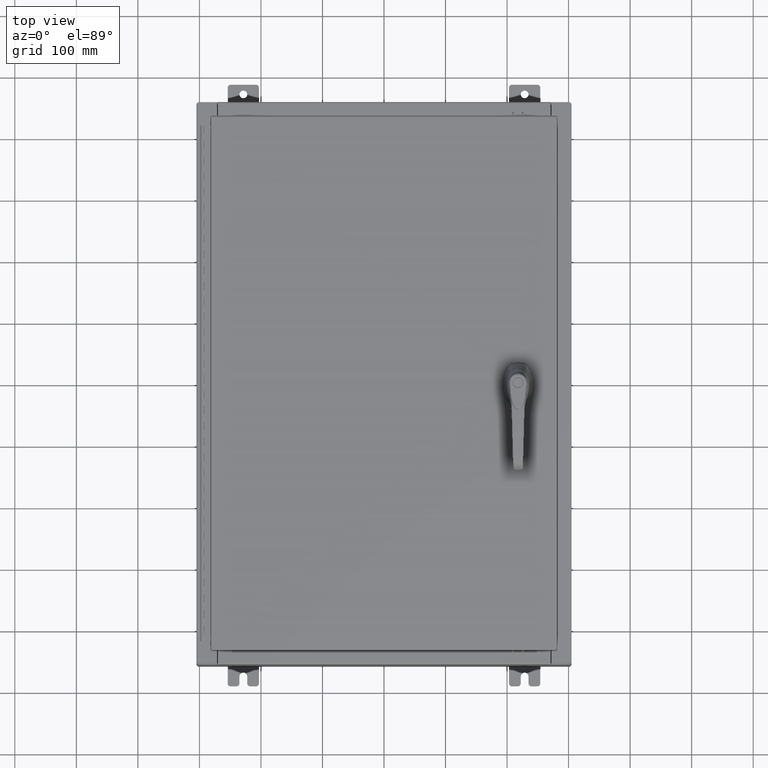
[diagram: clean part render]
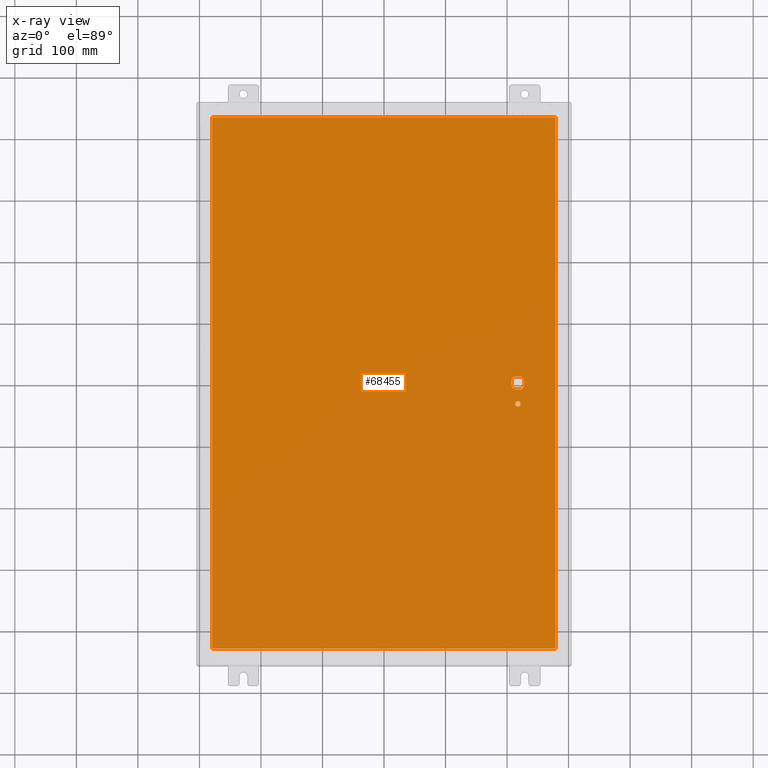
[diagram: x-ray — body ghosted, one internal face saturated and labeled with its STEP entity id]
A machine part, top view, then the same camera in x-ray: the body is ghosted and one INTERNAL B-rep face — a face not visible from any outside direction — is saturated and labeled: STEP entity #68455.
In plain terms, the highlighted planar face has unit normal (0, 0, -1).
Its self-contained STEP definition (entity closure, byte-faithful):
#1070 = VERTEX_POINT ( 'NONE', #113569 ) ;
#3262 = CARTESIAN_POINT ( 'NONE',  ( 10.99029999999999800, 17.00630000000000700, -0.07470000000000019700 ) ) ;
#3446 = CARTESIAN_POINT ( 'NONE',  ( 0.0000000000000000000, -0.4029999999999252000, -0.07470000000000003000 ) ) ;
#3655 = CARTESIAN_POINT ( 'NONE',  ( 0.0000000000000000000, 0.4029999999999252000, -0.07470000000000003000 ) ) ;
#4404 = EDGE_CURVE ( 'NONE', #78769, #97299, #23816, .T. ) ;
#6912 = DIRECTION ( 'NONE',  ( -1.000000000000000000, 0.0000000000000000000, 0.0000000000000000000 ) ) ;
#9930 = CARTESIAN_POINT ( 'NONE',  ( 8.377772629243686700, 0.4029999999999252000, -0.07470000000000003000 ) ) ;
#10451 = LINE ( 'NONE', #49284, #35782 ) ;
#12286 = CARTESIAN_POINT ( 'NONE',  ( 8.980999999999921700, 0.2002273707563080300, -0.07470000000000003000 ) ) ;
#14050 = CARTESIAN_POINT ( 'NONE',  ( 8.980999999999921700, 2.450686610769031800E-014, -0.07470000000000003000 ) ) ;
#14577 = FACE_BOUND ( 'NONE', #26274, .T. ) ;
#15269 = DIRECTION ( 'NONE',  ( 1.000000000000000000, -0.0000000000000000000, -0.0000000000000000000 ) ) ;
#15894 = VECTOR ( 'NONE', #15269, 39.37007874015748100 ) ;
#16020 = EDGE_CURVE ( 'NONE', #73569, #1070, #109365, .T. ) ;
#17822 = ORIENTED_EDGE ( 'NONE', *, *, #25262, .T. ) ;
#18682 = VERTEX_POINT ( 'NONE', #97175 ) ;
#18801 = CARTESIAN_POINT ( 'NONE',  ( 10.99029999999999600, -17.00629999999999200, -0.07470000000000019700 ) ) ;
#21846 = LINE ( 'NONE', #110418, #15894 ) ;
#22092 = DIRECTION ( 'NONE',  ( -0.0000000000000000000, -0.0000000000000000000, 1.000000000000000000 ) ) ;
#22480 = DIRECTION ( 'NONE',  ( -1.000000000000000000, -0.0000000000000000000, -0.0000000000000000000 ) ) ;
#22574 = AXIS2_PLACEMENT_3D ( 'NONE', #43477, #35152, #101652 ) ;
#23606 = CIRCLE ( 'NONE', #51478, 0.4499999999999156900 ) ;
#23816 = LINE ( 'NONE', #14050, #46109 ) ;
#25262 = EDGE_CURVE ( 'NONE', #69140, #95932, #55488, .T. ) ;
#25585 = VERTEX_POINT ( 'NONE', #79949 ) ;
#26274 = EDGE_LOOP ( 'NONE', ( #41808, #66466, #101268, #117539, #17822, #44963, #90608, #122999 ) ) ;
#29075 = CIRCLE ( 'NONE', #112150, 0.4499999999999156900 ) ;
#29702 = CARTESIAN_POINT ( 'NONE',  ( 8.778227370756305000, 0.4029999999999250300, -0.07470000000000003000 ) ) ;
#30662 = EDGE_CURVE ( 'NONE', #57520, #73569, #108465, .T. ) ;
#31589 = EDGE_CURVE ( 'NONE', #78769, #113852, #23606, .T. ) ;
#32776 = DIRECTION ( 'NONE',  ( -0.0000000000000000000, -0.0000000000000000000, 1.000000000000000000 ) ) ;
#32853 = DIRECTION ( 'NONE',  ( -0.0000000000000000000, -0.0000000000000000000, 1.000000000000000000 ) ) ;
#35152 = DIRECTION ( 'NONE',  ( 0.0000000000000000000, 0.0000000000000000000, -1.000000000000000000 ) ) ;
#35674 = VERTEX_POINT ( 'NONE', #88332 ) ;
#35782 = VECTOR ( 'NONE', #39768, 39.37007874015748100 ) ;
#38042 = CARTESIAN_POINT ( 'NONE',  ( 8.577999999999995900, 0.0000000000000000000, -0.07470000000000003000 ) ) ;
#39768 = DIRECTION ( 'NONE',  ( 0.0000000000000000000, -1.000000000000000000, 0.0000000000000000000 ) ) ;
#40408 = DIRECTION ( 'NONE',  ( -0.0000000000000000000, -0.0000000000000000000, 1.000000000000000000 ) ) ;
#40624 = EDGE_LOOP ( 'NONE', ( #88833, #77895, #58285, #94299 ) ) ;
#41808 = ORIENTED_EDGE ( 'NONE', *, *, #89990, .T. ) ;
#43477 = CARTESIAN_POINT ( 'NONE',  ( 0.0000000000000000000, 0.0000000000000000000, -0.07470000000000000300 ) ) ;
#44963 = ORIENTED_EDGE ( 'NONE', *, *, #95274, .T. ) ;
#46066 = CARTESIAN_POINT ( 'NONE',  ( -10.99030000000000500, 17.00630000000000700, -0.07470000000000347200 ) ) ;
#46109 = VECTOR ( 'NONE', #60135, 39.37007874015748100 ) ;
#46400 = AXIS2_PLACEMENT_3D ( 'NONE', #97367, #40408, #106836 ) ;
#46610 = EDGE_LOOP ( 'NONE', ( #72561, #48138 ) ) ;
#47564 = DIRECTION ( 'NONE',  ( -1.000000000000000000, 0.0000000000000000000, 0.0000000000000000000 ) ) ;
#48138 = ORIENTED_EDGE ( 'NONE', *, *, #118010, .T. ) ;
#49284 = CARTESIAN_POINT ( 'NONE',  ( 8.175000000000070000, 0.0000000000000000000, -0.07470000000000003000 ) ) ;
#49644 = CIRCLE ( 'NONE', #112296, 0.1715000000000011500 ) ;
#51478 = AXIS2_PLACEMENT_3D ( 'NONE', #89760, #32853, #99374 ) ;
#54357 = EDGE_CURVE ( 'NONE', #56743, #99398, #76014, .T. ) ;
#54610 = LINE ( 'NONE', #3446, #115526 ) ;
#54948 = VECTOR ( 'NONE', #22480, 39.37007874015748100 ) ;
#55488 = CIRCLE ( 'NONE', #119496, 0.4499999999999156900 ) ;
#56743 = VERTEX_POINT ( 'NONE', #76300 ) ;
#57520 = VERTEX_POINT ( 'NONE', #106802 ) ;
#58285 = ORIENTED_EDGE ( 'NONE', *, *, #16020, .F. ) ;
#60135 = DIRECTION ( 'NONE',  ( 2.728745808672812900E-015, -1.000000000000000000, 0.0000000000000000000 ) ) ;
#63847 = DIRECTION ( 'NONE',  ( -0.0000000000000000000, -0.0000000000000000000, 1.000000000000000000 ) ) ;
#66466 = ORIENTED_EDGE ( 'NONE', *, *, #4404, .F. ) ;
#67722 = EDGE_CURVE ( 'NONE', #113852, #69140, #106804, .T. ) ;
#68455 = ADVANCED_FACE ( 'NONE', ( #115684, #118664, #14577 ), #92081, .T. ) ;
#69140 = VERTEX_POINT ( 'NONE', #9930 ) ;
#69632 = EDGE_CURVE ( 'NONE', #1070, #25585, #21846, .T. ) ;
#70026 = CARTESIAN_POINT ( 'NONE',  ( -10.99030000000000100, 17.00630000000000700, -0.07470000000000000300 ) ) ;
#70704 = LINE ( 'NONE', #18801, #118285 ) ;
#72561 = ORIENTED_EDGE ( 'NONE', *, *, #79513, .T. ) ;
#73569 = VERTEX_POINT ( 'NONE', #70026 ) ;
#75720 = DIRECTION ( 'NONE',  ( 0.0000000000000000000, 1.000000000000000000, 0.0000000000000000000 ) ) ;
#75833 = CARTESIAN_POINT ( 'NONE',  ( 8.980999999999921700, -0.2002273707563075900, -0.07470000000000003000 ) ) ;
#76014 = CIRCLE ( 'NONE', #46400, 0.4499999999999156900 ) ;
#76300 = CARTESIAN_POINT ( 'NONE',  ( 8.175000000000070000, -0.2002273707563079800, -0.07470000000000003000 ) ) ;
#77895 = ORIENTED_EDGE ( 'NONE', *, *, #69632, .F. ) ;
#78769 = VERTEX_POINT ( 'NONE', #12286 ) ;
#79016 = CARTESIAN_POINT ( 'NONE',  ( 8.577999999999995900, 0.0000000000000000000, -0.07470000000000003000 ) ) ;
#79513 = EDGE_CURVE ( 'NONE', #104827, #35674, #49644, .T. ) ;
#79949 = CARTESIAN_POINT ( 'NONE',  ( 10.99029999999999600, -17.00629999999999600, -0.07470000000000000300 ) ) ;
#88332 = CARTESIAN_POINT ( 'NONE',  ( 8.406499999999994100, -1.338000000000000100, -0.07470000000000003000 ) ) ;
#88587 = DIRECTION ( 'NONE',  ( -1.000000000000000000, 1.776356839400251300E-015, 0.0000000000000000000 ) ) ;
#88833 = ORIENTED_EDGE ( 'NONE', *, *, #122625, .F. ) ;
#89346 = DIRECTION ( 'NONE',  ( -1.000000000000000000, 0.0000000000000000000, 0.0000000000000000000 ) ) ;
#89683 = CARTESIAN_POINT ( 'NONE',  ( 8.577999999999995900, -1.338000000000000100, -0.07470000000000003000 ) ) ;
#89760 = CARTESIAN_POINT ( 'NONE',  ( 8.577999999999995900, 0.0000000000000000000, -0.07470000000000003000 ) ) ;
#89990 = EDGE_CURVE ( 'NONE', #18682, #97299, #29075, .T. ) ;
#90608 = ORIENTED_EDGE ( 'NONE', *, *, #54357, .T. ) ;
#92081 = PLANE ( 'NONE',  #22574 ) ;
#93602 = CARTESIAN_POINT ( 'NONE',  ( 8.175000000000070000, 0.2002273707563080300, -0.07470000000000003000 ) ) ;
#94299 = ORIENTED_EDGE ( 'NONE', *, *, #30662, .F. ) ;
#95274 = EDGE_CURVE ( 'NONE', #95932, #56743, #10451, .T. ) ;
#95932 = VERTEX_POINT ( 'NONE', #93602 ) ;
#97175 = CARTESIAN_POINT ( 'NONE',  ( 8.778227370756305000, -0.4029999999999252000, -0.07470000000000003000 ) ) ;
#97299 = VERTEX_POINT ( 'NONE', #75833 ) ;
#97367 = CARTESIAN_POINT ( 'NONE',  ( 8.577999999999995900, 0.0000000000000000000, -0.07470000000000003000 ) ) ;
#99293 = DIRECTION ( 'NONE',  ( -1.000000000000000000, 0.0000000000000000000, 0.0000000000000000000 ) ) ;
#99374 = DIRECTION ( 'NONE',  ( -1.000000000000000000, 0.0000000000000000000, 0.0000000000000000000 ) ) ;
#99398 = VERTEX_POINT ( 'NONE', #105158 ) ;
#101268 = ORIENTED_EDGE ( 'NONE', *, *, #31589, .T. ) ;
#101652 = DIRECTION ( 'NONE',  ( -1.000000000000000000, 0.0000000000000000000, -0.0000000000000000000 ) ) ;
#101740 = CIRCLE ( 'NONE', #103289, 0.1715000000000011500 ) ;
#103289 = AXIS2_PLACEMENT_3D ( 'NONE', #89683, #32776, #99293 ) ;
#103892 = VECTOR ( 'NONE', #89346, 39.37007874015748100 ) ;
#104505 = DIRECTION ( 'NONE',  ( -0.0000000000000000000, -0.0000000000000000000, 1.000000000000000000 ) ) ;
#104827 = VERTEX_POINT ( 'NONE', #119483 ) ;
#105158 = CARTESIAN_POINT ( 'NONE',  ( 8.377772629243686700, -0.4029999999999250300, -0.07470000000000003000 ) ) ;
#106331 = VECTOR ( 'NONE', #122096, 39.37007874015748100 ) ;
#106802 = CARTESIAN_POINT ( 'NONE',  ( 10.99029999999999600, 17.00630000000000700, -0.07470000000000000300 ) ) ;
#106804 = LINE ( 'NONE', #3655, #103892 ) ;
#106836 = DIRECTION ( 'NONE',  ( -1.000000000000000000, 8.881784197001256300E-016, 0.0000000000000000000 ) ) ;
#108465 = LINE ( 'NONE', #3262, #54948 ) ;
#108644 = DIRECTION ( 'NONE',  ( 1.000000000000000000, 0.0000000000000000000, 0.0000000000000000000 ) ) ;
#109365 = LINE ( 'NONE', #46066, #106331 ) ;
#110418 = CARTESIAN_POINT ( 'NONE',  ( -10.99030000000000000, -17.00629999999999600, -0.07470000000000019700 ) ) ;
#112150 = AXIS2_PLACEMENT_3D ( 'NONE', #79016, #22092, #88587 ) ;
#112296 = AXIS2_PLACEMENT_3D ( 'NONE', #120799, #63847, #6912 ) ;
#113569 = CARTESIAN_POINT ( 'NONE',  ( -10.99030000000000000, -17.00629999999999600, -0.07470000000000000300 ) ) ;
#113852 = VERTEX_POINT ( 'NONE', #29702 ) ;
#115526 = VECTOR ( 'NONE', #108644, 39.37007874015748100 ) ;
#115684 = FACE_BOUND ( 'NONE', #46610, .T. ) ;
#117539 = ORIENTED_EDGE ( 'NONE', *, *, #67722, .T. ) ;
#118010 = EDGE_CURVE ( 'NONE', #35674, #104827, #101740, .T. ) ;
#118285 = VECTOR ( 'NONE', #75720, 39.37007874015748100 ) ;
#118664 = FACE_OUTER_BOUND ( 'NONE', #40624, .T. ) ;
#119483 = CARTESIAN_POINT ( 'NONE',  ( 8.749499999999997600, -1.338000000000000100, -0.07470000000000003000 ) ) ;
#119496 = AXIS2_PLACEMENT_3D ( 'NONE', #38042, #104505, #47564 ) ;
#120016 = EDGE_CURVE ( 'NONE', #99398, #18682, #54610, .T. ) ;
#120799 = CARTESIAN_POINT ( 'NONE',  ( 8.577999999999995900, -1.338000000000000100, -0.07470000000000003000 ) ) ;
#122096 = DIRECTION ( 'NONE',  ( 0.0000000000000000000, -1.000000000000000000, 0.0000000000000000000 ) ) ;
#122625 = EDGE_CURVE ( 'NONE', #25585, #57520, #70704, .T. ) ;
#122999 = ORIENTED_EDGE ( 'NONE', *, *, #120016, .T. ) ;